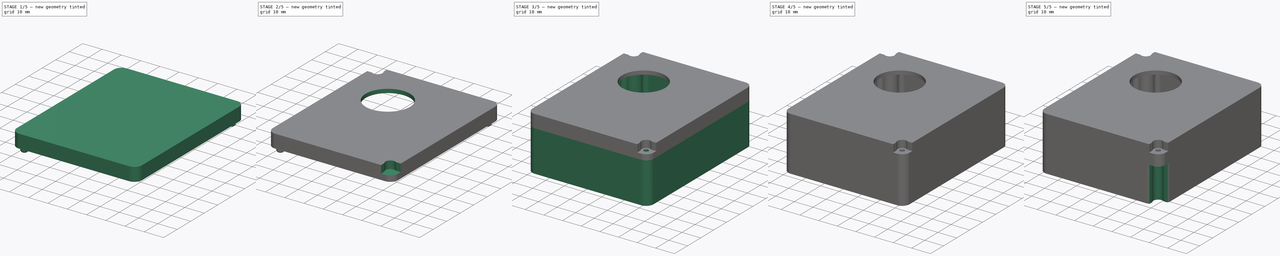
[diagram: build sequence overview — one tinted view per stage of 5, left to right]
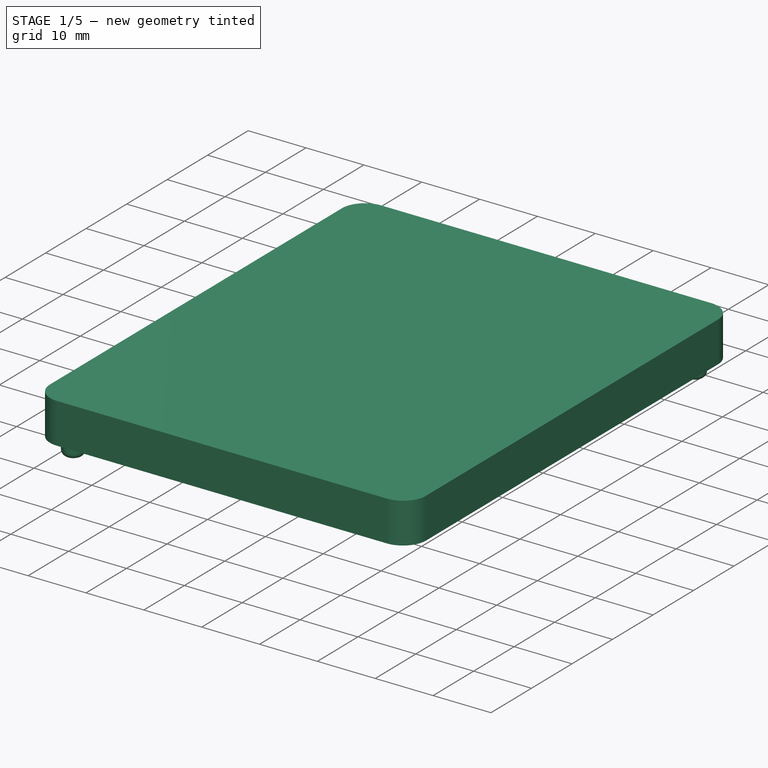
[diagram: stage 1 of 5 — iso view after this stage's code; geometry added in this stage tinted green]
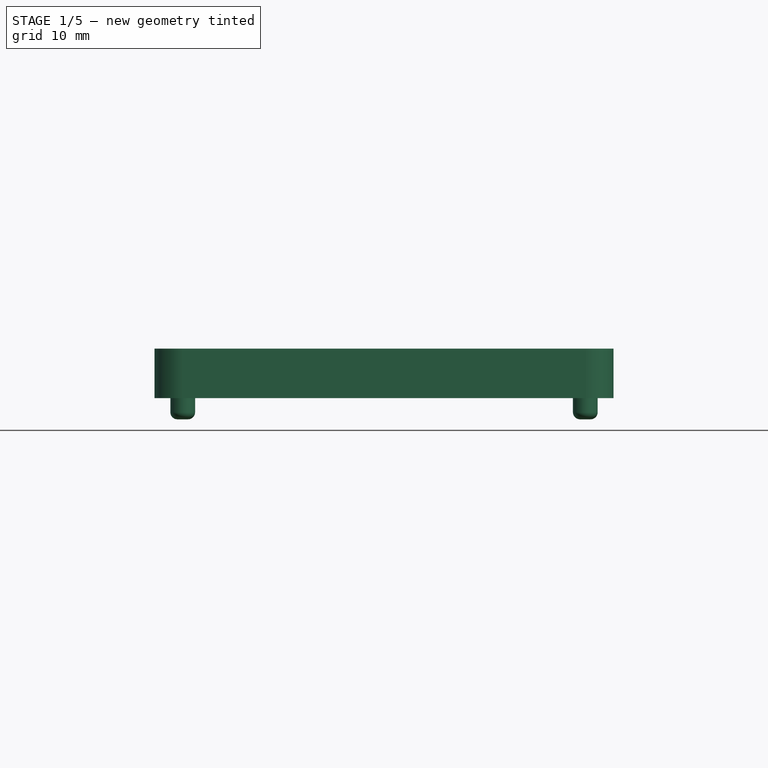
[diagram: stage 1 of 5 — front view after this stage's code; geometry added in this stage tinted green]
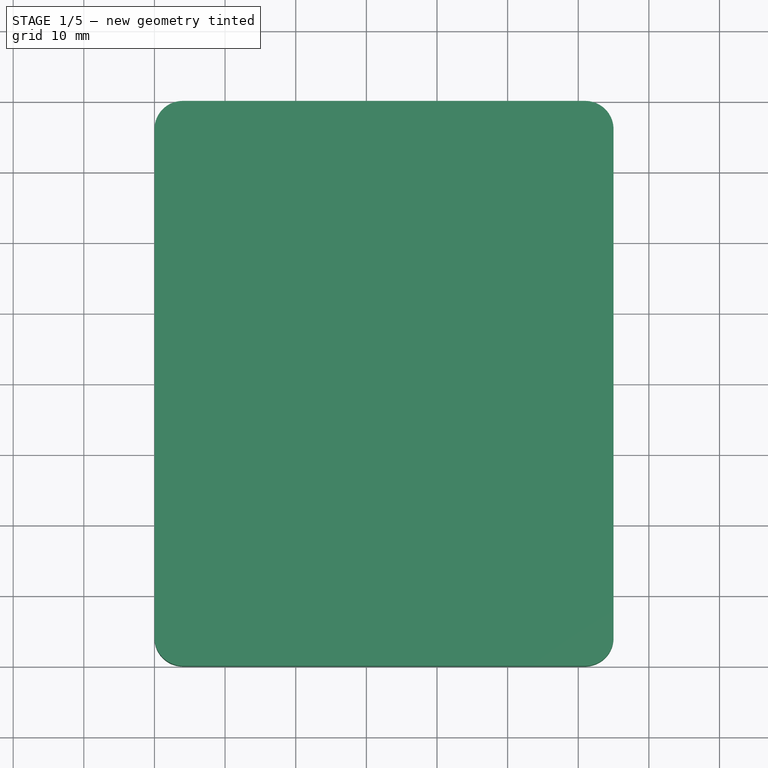
[diagram: stage 1 of 5 — top view after this stage's code; geometry added in this stage tinted green]
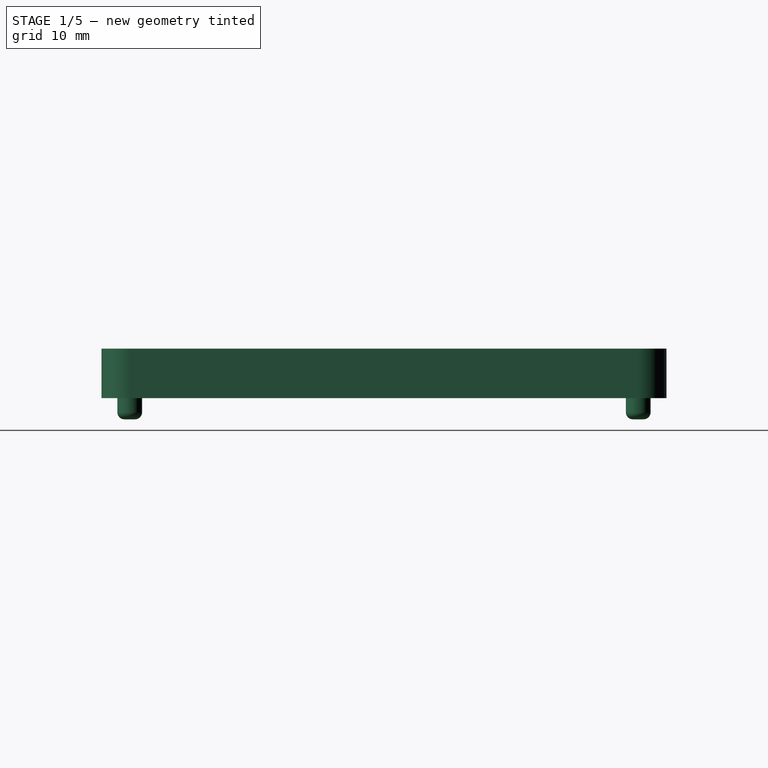
[diagram: stage 1 of 5 — right view after this stage's code; geometry added in this stage tinted green]
FCSTD DOCUMENT  (FreeCAD 1.0R39319 (Git))
Label: remote
License: All rights reserved
LicenseURL: https://en.wikipedia.org/wiki/All_rights_reserved
objects: Sketcher::SketchObject×14, PartDesign::ShapeBinder×14, PartDesign::Pocket×10, PartDesign::Plane×5, PartDesign::Pad×4, PartDesign::Body×3, PartDesign::Fillet×2
note: 98 computed .brp shape members not serialized (recipe doc carries the construction recipe); baked Part::Feature solids carry a one-line shape summary decoded from their .brp

FEATURE [PartDesign::Body] Body001  label="bottom_part"
  AllowCompound = false
  Group = -> [ShapeBinder,Pad,ShapeBinder001,Pocket,ShapeBinder002,Pocket001,ShapeBinder003,Pocket002,ShapeBinder004,Pocket003,ShapeBinder005,Pocket004,ShapeBinder006,Pad001,ShapeBinder007,Pocket005,Fillet]
  Origin = -> Origin001
  Tip = -> Fillet
FEATURE [PartDesign::ShapeBinder] ShapeBinder008
  Placement = pos=(0,0,22) rot=(0,0,1;0rad)
  Support = -> [Sketch008]
  TraceSupport = false
FEATURE [PartDesign::Pad] Pad002
  Direction = (0,0,1)
  Length = 7
  Length2 = 10
  Placement = pos=(0,0,22) rot=(0,0,1;0rad)
  Profile = -> ShapeBinder008
  Refine = true
  Suppressed = false
  Type = 0
FEATURE [Sketcher::SketchObject] Sketch009  label="locating_pins"
  ArcFitTolerance = 1e-06
  AttachmentSupport = -> [DatumPlane003]
  ExternalGeometry = -> [Sketch003]
  FullyConstrained = true
  MakeInternals = false
  MapMode = 5
  Placement = pos=(0,0,22) rot=(0,0,1;0rad)
  sketch-geometry (2):
    g0: Circle CenterX=61 CenterY=76 CenterZ=0 NormalX=0 NormalY=0 NormalZ=1 AngleXU=0 Radius=1.75
    g1: Circle CenterX=4 CenterY=4 CenterZ=0 NormalX=0 NormalY=0 NormalZ=1 AngleXU=0 Radius=1.75
  constraints (4):
    c: Coincident(g0,g-3)
    c: Coincident(g1,g-4)
    c: Diameter(g1) = 3.5
    c: Diameter(g0) = 3.5
FEATURE [PartDesign::ShapeBinder] ShapeBinder009
  Placement = pos=(0,0,22) rot=(0,0,1;0rad)
  Support = -> [Sketch009]
  TraceSupport = false
FEATURE [PartDesign::Pad] Pad003
  BaseFeature = -> Pad002
  Direction = (0,0,1)
  Length = 3
  Length2 = 10
  Placement = pos=(0,0,22) rot=(0,0,1;0rad)
  Profile = -> ShapeBinder009
  Refine = true
  Reversed = true
  Suppressed = false
  Type = 0
FEATURE [PartDesign::Fillet] Fillet001
  Base = -> Pad003 [Face13,Face14]
  BaseFeature = -> Pad003
  Placement = pos=(0,0,22) rot=(0,0,1;0rad)
  Radius = 1
  Refine = true
  SupportTransform = false
  Suppressed = false
  UseAllEdges = false
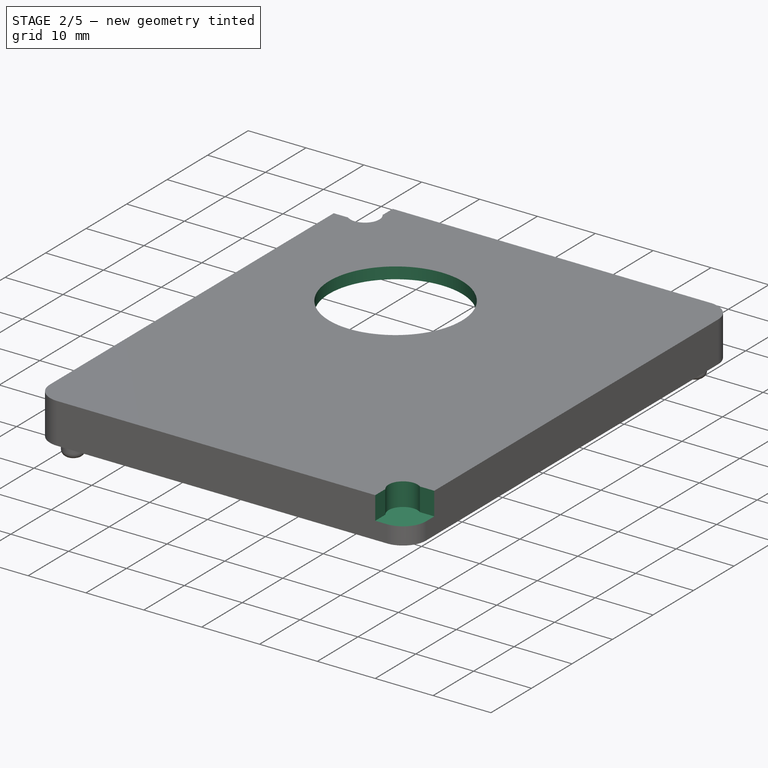
[diagram: stage 2 of 5 — iso view after this stage's code; geometry added in this stage tinted green]
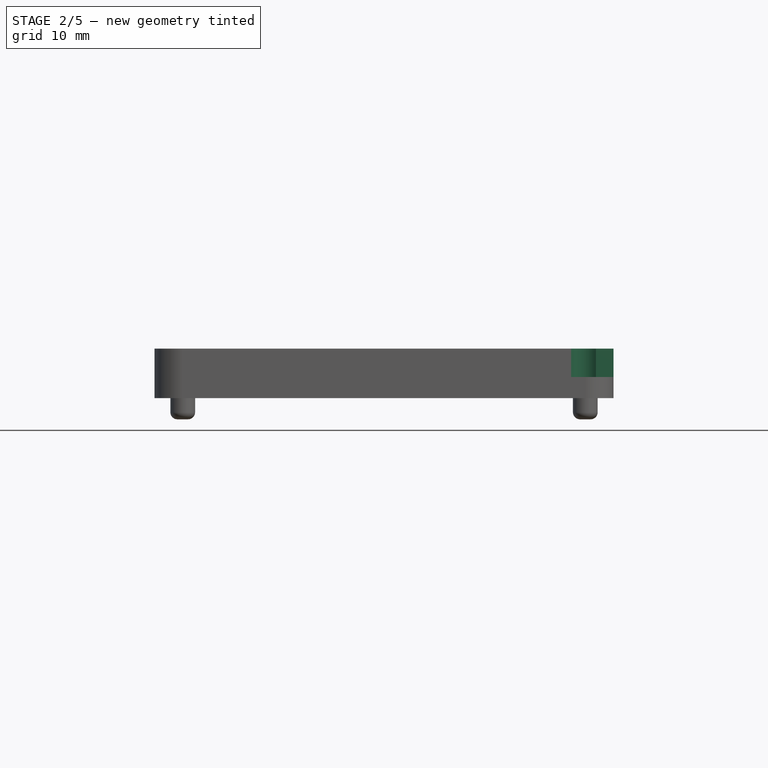
[diagram: stage 2 of 5 — front view after this stage's code; geometry added in this stage tinted green]
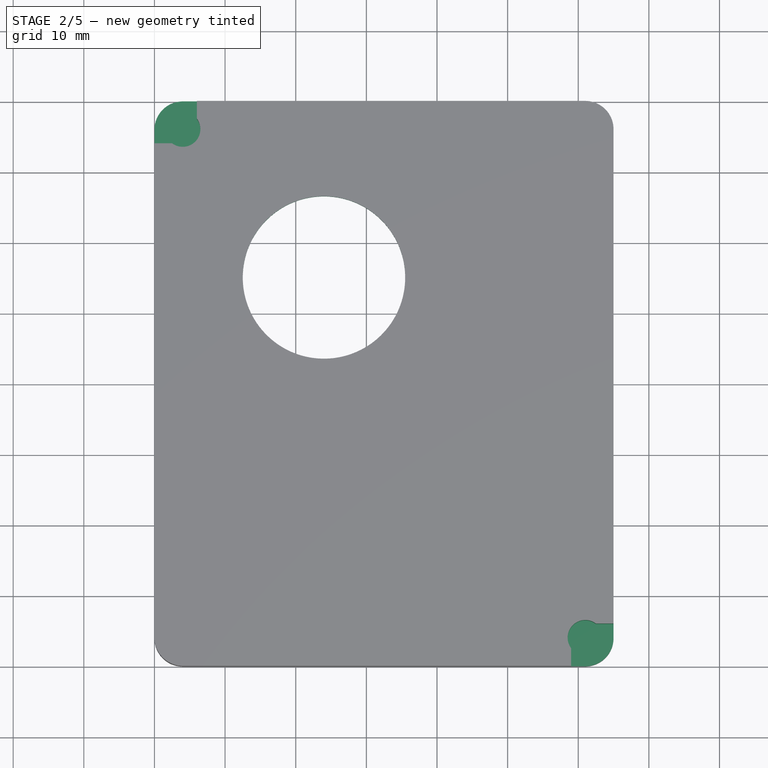
[diagram: stage 2 of 5 — top view after this stage's code; geometry added in this stage tinted green]
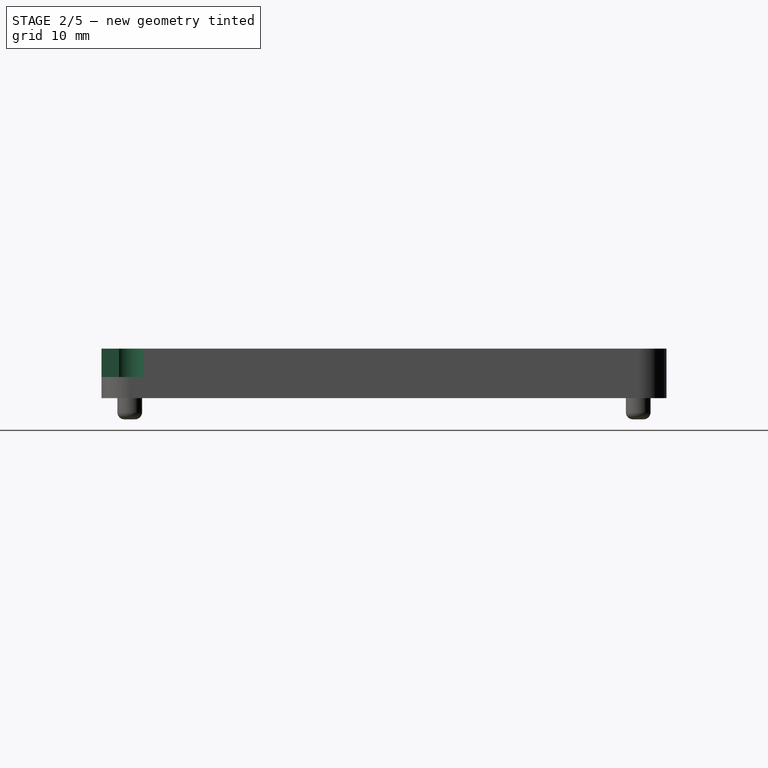
[diagram: stage 2 of 5 — right view after this stage's code; geometry added in this stage tinted green]
FEATURE [Sketcher::SketchObject] Sketch010  label="cover_recess"
  ArcFitTolerance = 1e-06
  AttachmentSupport = -> [DatumPlane003]
  ExternalGeometry = -> [Sketch]
  FullyConstrained = true
  MakeInternals = false
  MapMode = 5
  Placement = pos=(0,0,22) rot=(0,0,1;0rad)
  sketch-geometry (16):
    g0: LineSegment StartX=53.5 StartY=79 StartZ=0 EndX=11.5 EndY=79 EndZ=0
    g1: LineSegment StartX=1 StartY=69 StartZ=0 EndX=1 EndY=11 EndZ=0
    g2: LineSegment StartX=64 StartY=11 StartZ=0 EndX=64 EndY=69 EndZ=0
    g3: LineSegment StartX=64 StartY=69 StartZ=0 EndX=53.5 EndY=79 EndZ=0
    g4: LineSegment StartX=1 StartY=69 StartZ=0 EndX=11.5 EndY=79 EndZ=0
    g5: LineSegment StartX=53.5 StartY=1 StartZ=0 EndX=64 EndY=11 EndZ=0
    g6: LineSegment StartX=11.5 StartY=1 StartZ=0 EndX=1 EndY=11 EndZ=0
    g7: LineSegment StartX=11.5 StartY=1 StartZ=0 EndX=53.5 EndY=1 EndZ=0
    g8: GeomPoint [constr] X=64 Y=40 Z=0
    g9: GeomPoint [constr] X=32.5 Y=79 Z=0
    g10: GeomPoint [constr] X=32.5 Y=1 Z=0
    g11: GeomPoint [constr] X=1 Y=40 Z=0
    g12: LineSegment [constr] StartX=64 StartY=40 StartZ=0 EndX=1 EndY=40 EndZ=0
    g13: LineSegment [constr] StartX=32.5 StartY=79 StartZ=0 EndX=32.5 EndY=1 EndZ=0
    g14: GeomPoint [constr] X=32.5 Y=40 Z=0
    g15: GeomPoint [constr] X=32.5 Y=40 Z=0
  constraints (35):
    c: Horizontal(g0)
    c: Vertical(g1)
    c: Vertical(g2)
    c: PointOnObject(g6,g7)
    c: Coincident(g7,g5)
    c: Coincident(g2,g5)
    c: PointOnObject(g7,g6)
    c: Coincident(g1,g6)
    c: Coincident(g0,g3)
    c: Coincident(g2,g3)
    c: Coincident(g0,g4)
    c: Coincident(g1,g4)
    c: DistanceX(g0,g0) = 42
    c: Equal(g7,g0)
    c: Equal(g2,g1)
    c: DistanceY(g2,g2) = 58
    c: Symmetric(g2,g2,g8)
    c: Symmetric(g0,g0,g9)
    c: Symmetric(g7,g7,g10)
    c: Symmetric(g1,g1,g11)
    c: Coincident(g12,g8)
    c: Coincident(g12,g11)
    c: Horizontal(g12)
    c: Coincident(g13,g9)
    c: Coincident(g13,g10)
    c: Vertical(g13)
    c: Symmetric(g13,g13,g14)
    c: PointOnObject(g14,g12)
    c: Symmetric(g12,g12,g15)
    c: PointOnObject(g15,g13)
    c: Horizontal(g7)
    c: Distance(g-1,g7) = 1
    c: Distance(g2,g-3) = 1
    c: Distance(g-2,g1) = 1
    c: Distance(g-4,g0) = 1
FEATURE [PartDesign::ShapeBinder] ShapeBinder010
  Placement = pos=(0,0,22) rot=(0,0,1;0rad)
  Support = -> [Sketch010]
  TraceSupport = false
FEATURE [PartDesign::Pocket] Pocket006
  BaseFeature = -> Fillet001
  Direction = (0,0,-1)
  Length = 5
  Length2 = 5
  Placement = pos=(0,0,22) rot=(0,0,1;0rad)
  Profile = -> ShapeBinder010
  Refine = true
  Reversed = true
  Suppressed = false
  Type = 0
FEATURE [PartDesign::Plane] DatumPlane004
  AttachmentOffset = pos=(0,0,29) rot=(0,0,1;0rad)
  AttachmentSupport = -> [XY_Plane]
  Length = 109.442
  MapMode = 5
  Placement = pos=(0,0,29) rot=(0,0,1;0rad)
  ResizeMode = 0
  Width = 124.442
FEATURE [Sketcher::SketchObject] Sketch011  label="cover_flange_recess"
  ArcFitTolerance = 1e-06
  AttachmentSupport = -> [DatumPlane004]
  ExternalGeometry = -> [Sketch003,Sketch]
  FullyConstrained = true
  MakeInternals = false
  MapMode = 5
  Placement = pos=(0,0,29) rot=(0,0,1;0rad)
  expr: Constraints[13] = Sketch007.Constraints[13]
  expr: Constraints[14] = Sketch007.Constraints[14]
  expr: Constraints[16] = Sketch007.Constraints[16]
  expr: Constraints[1] = Sketch007.Constraints[1]
  expr: Constraints[26] = Sketch007.Constraints[26]
  expr: Constraints[27] = Sketch007.Constraints[27]
  sketch-geometry (10):
    g0: ArcOfCircle CenterX=61 CenterY=4 CenterZ=0 NormalX=0 NormalY=0 NormalZ=1 AngleXU=0 Radius=2.5 StartAngle=0.927295 EndAngle=3.78509
    g1: LineSegment StartX=65 StartY=0 StartZ=0 EndX=65 EndY=6 EndZ=0
    g2: LineSegment StartX=65 StartY=6 StartZ=0 EndX=62.5 EndY=6 EndZ=0
    g3: LineSegment StartX=59 StartY=2.5 StartZ=0 EndX=59 EndY=0 EndZ=0
    g4: LineSegment StartX=59 StartY=0 StartZ=0 EndX=65 EndY=0 EndZ=0
    g5: ArcOfCircle CenterX=4 CenterY=76 CenterZ=0 NormalX=0 NormalY=0 NormalZ=1 AngleXU=0 Radius=2.5 StartAngle=4.06889 EndAngle=6.92669
    g6: LineSegment StartX=6 StartY=77.5 StartZ=0 EndX=6 EndY=80 EndZ=0
    g7: LineSegment StartX=6 StartY=80 StartZ=0 EndX=0 EndY=80 EndZ=0
    g8: LineSegment StartX=0 StartY=80 StartZ=0 EndX=0 EndY=74 EndZ=0
    g9: LineSegment StartX=0 StartY=74 StartZ=0 EndX=2.5 EndY=74 EndZ=0
  constraints (30):
    c: Coincident(g0,g-3)
    c: Diameter(g0) = 5
    c: Coincident(g1,g2)
    c: Coincident(g3,g4)
    c: Coincident(g4,g1)
    c: Vertical(g1)
    c: Vertical(g3)
    c: Horizontal(g2)
    c: Horizontal(g4)
    c: PointOnObject(g1,g-1)
    c: PointOnObject(g1,g-4)
    c: Coincident(g0,g3)
    c: Coincident(g0,g2)
    c: DistanceY(g1,g1) = 6
    c: DistanceX(g4,g4) = 6
    c: Coincident(g5,g-6)
    c: Diameter(g5) = 5
    c: Coincident(g6,g7)
    c: Coincident(g7,g8)
    c: Coincident(g8,g9)
    c: Vertical(g6)
    c: Vertical(g8)
    c: Horizontal(g7)
    c: Horizontal(g9)
    c: PointOnObject(g7,g-2)
    c: PointOnObject(g-5,g7)
    c: DistanceX(g7,g7) = 6
    c: DistanceY(g8,g8) = 6
    c: Coincident(g9,g5)
    c: Coincident(g6,g5)
FEATURE [PartDesign::ShapeBinder] ShapeBinder011
  Placement = pos=(0,0,29) rot=(0,0,1;0rad)
  Support = -> [Sketch011]
  TraceSupport = false
FEATURE [PartDesign::Pocket] Pocket007
  BaseFeature = -> Pocket006
  Direction = (0,0,-1)
  Length = 4
  Length2 = 5
  Placement = pos=(0,0,22) rot=(0,0,1;0rad)
  Profile = -> ShapeBinder011
  Refine = true
  Suppressed = false
  Type = 0
FEATURE [Sketcher::SketchObject] Sketch012  label="joystick_window"
  ArcFitTolerance = 1e-06
  AttachmentSupport = -> [DatumPlane004]
  FullyConstrained = true
  MakeInternals = false
  MapMode = 5
  Placement = pos=(0,0,29) rot=(0,0,1;0rad)
  sketch-geometry (1):
    g0: Circle CenterX=24 CenterY=55 CenterZ=0 NormalX=0 NormalY=0 NormalZ=1 AngleXU=0 Radius=11.5
  constraints (3):
    c: Diameter(g0) = 23
    c: Distance(g0,g-2) = 24
    c: DistanceY(g-1,g0) = 55
FEATURE [PartDesign::ShapeBinder] ShapeBinder012
  Placement = pos=(0,0,29) rot=(0,0,1;0rad)
  Support = -> [Sketch012]
  TraceSupport = false
FEATURE [PartDesign::Pocket] Pocket008
  BaseFeature = -> Pocket007
  Direction = (0,0,-1)
  Length = 5
  Length2 = 5
  Placement = pos=(0,0,22) rot=(0,0,1;0rad)
  Profile = -> ShapeBinder012
  Refine = true
  Suppressed = false
  Type = 0
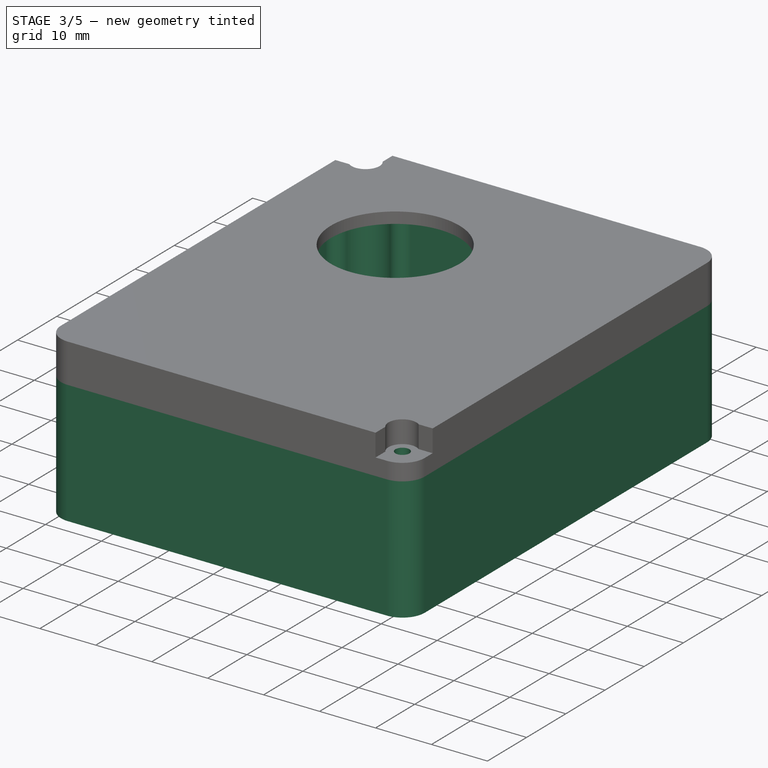
[diagram: stage 3 of 5 — iso view after this stage's code; geometry added in this stage tinted green]
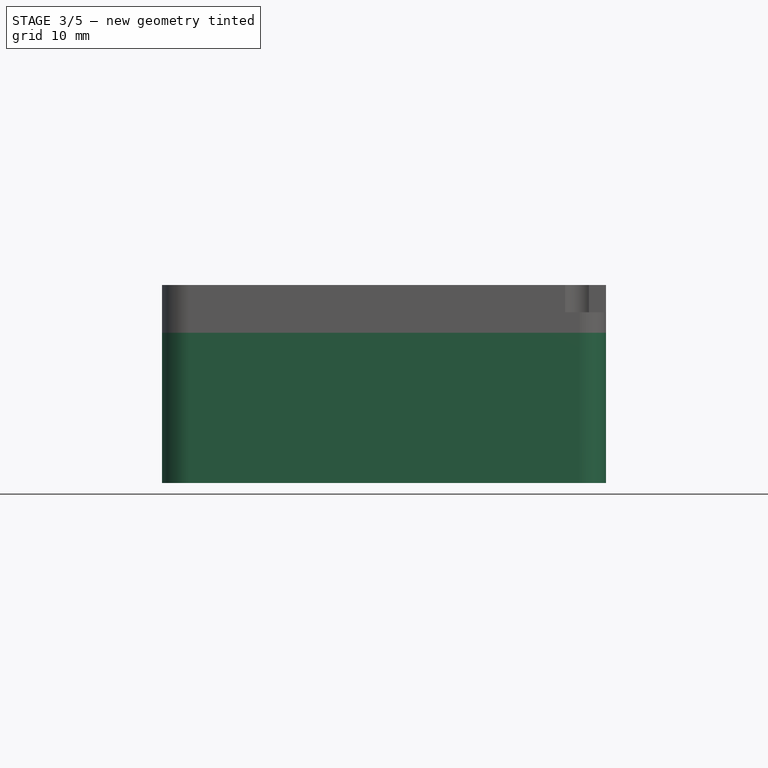
[diagram: stage 3 of 5 — front view after this stage's code; geometry added in this stage tinted green]
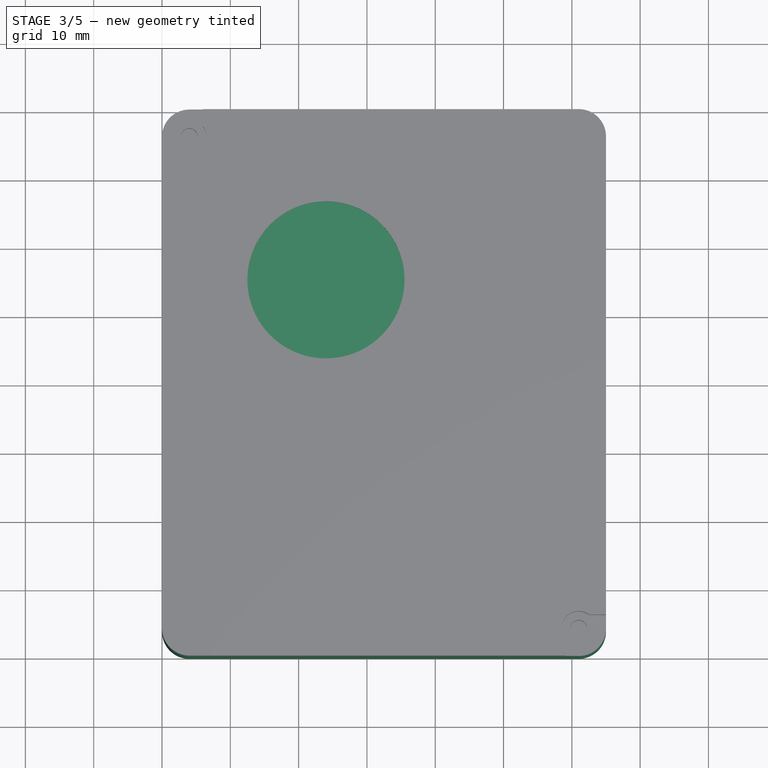
[diagram: stage 3 of 5 — top view after this stage's code; geometry added in this stage tinted green]
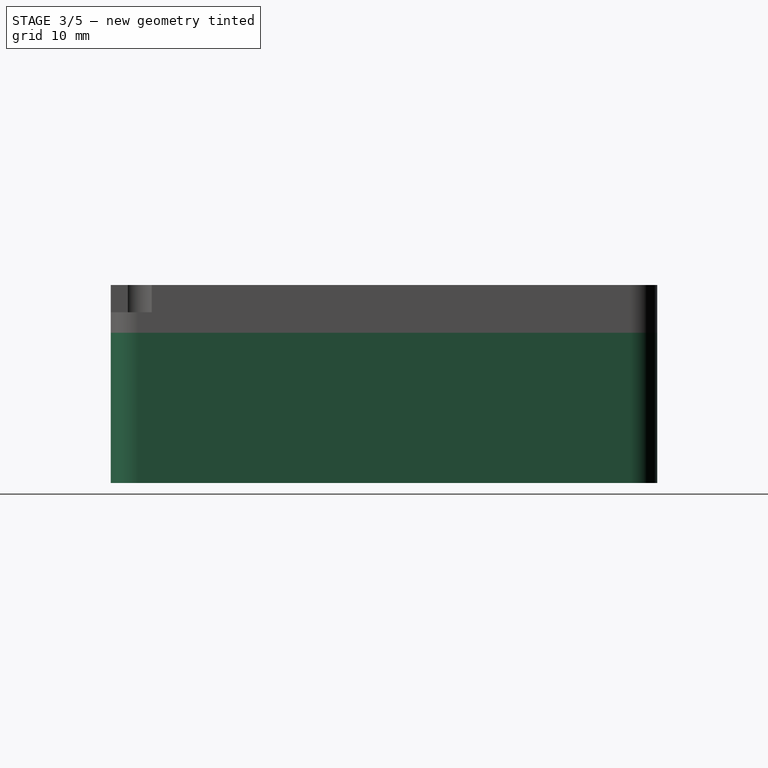
[diagram: stage 3 of 5 — right view after this stage's code; geometry added in this stage tinted green]
FEATURE [Sketcher::SketchObject] Sketch  label="bottom_outer_profile"
  ArcFitTolerance = 1e-06
  AttachmentSupport = -> [XY_Plane]
  FullyConstrained = true
  MakeInternals = false
  MapMode = 5
  sketch-geometry (12):
    g0: LineSegment StartX=4 StartY=0 StartZ=0 EndX=61 EndY=0 EndZ=0
    g1: LineSegment StartX=65 StartY=4 StartZ=0 EndX=65 EndY=76 EndZ=0
    g2: LineSegment StartX=61 StartY=80 StartZ=0 EndX=4 EndY=80 EndZ=0
    g3: LineSegment StartX=0 StartY=76 StartZ=0 EndX=0 EndY=4 EndZ=0
    g4: ArcOfCircle CenterX=4 CenterY=76 CenterZ=0 NormalX=0 NormalY=0 NormalZ=1 AngleXU=0 Radius=4 StartAngle=1.5708 EndAngle=3.14159
    g5: GeomPoint [constr] X=0 Y=80 Z=0
    g6: ArcOfCircle CenterX=61 CenterY=76 CenterZ=0 NormalX=0 NormalY=0 NormalZ=1 AngleXU=0 Radius=4 StartAngle=0 EndAngle=1.5708
    g7: GeomPoint [constr] X=65 Y=80 Z=0
    g8: ArcOfCircle CenterX=61 CenterY=4 CenterZ=0 NormalX=0 NormalY=0 NormalZ=1 AngleXU=0 Radius=4 StartAngle=4.71239 EndAngle=6.28319
    g9: GeomPoint [constr] X=65 Y=0 Z=0
    g10: ArcOfCircle CenterX=4 CenterY=4 CenterZ=0 NormalX=0 NormalY=0 NormalZ=1 AngleXU=0 Radius=4 StartAngle=3.14159 EndAngle=4.71239
    g11: GeomPoint [constr] X=0 Y=0 Z=0
  constraints (27):
    c: Horizontal(g0)
    c: Horizontal(g2)
    c: Vertical(g1)
    c: Vertical(g3)
    c: Coincident(g11,g-1)
    c: Distance(g5,g1) = 65
    c: Distance(g7,g0) = 80
    c: PointOnObject(g5,g3)
    c: PointOnObject(g5,g2)
    c: Tangent(g3,g4) = -1.5708
    c: Tangent(g2,g4) = -1.5708
    c: PointOnObject(g7,g2)
    c: PointOnObject(g7,g1)
    c: Tangent(g2,g6) = -1.5708
    c: Tangent(g1,g6) = -1.5708
    c: PointOnObject(g9,g1)
    c: PointOnObject(g9,g0)
    c: Tangent(g1,g8) = -1.5708
    c: Tangent(g0,g8) = -1.5708
    c: PointOnObject(g11,g0)
    c: PointOnObject(g11,g3)
    c: Tangent(g0,g10) = -1.5708
    c: Tangent(g3,g10) = -1.5708
    c: Radius(g10) = 4
    c: Radius(g8) = 4
    c: Radius(g6) = 4
    c: Radius(g4) = 4
FEATURE [PartDesign::ShapeBinder] ShapeBinder
  Support = -> [Sketch]
  TraceSupport = false
FEATURE [PartDesign::Pad] Pad
  Direction = (0,0,1)
  Length = 22
  Length2 = 10
  Profile = -> ShapeBinder
  Refine = true
  Suppressed = false
  Type = 0
FEATURE [PartDesign::Plane] DatumPlane
  AttachmentOffset = pos=(0,0,2.25) rot=(0,0,1;0rad)
  AttachmentSupport = -> [XY_Plane]
  Length = 109.442
  MapMode = 5
  Placement = pos=(0,0,2.25) rot=(0,0,1;0rad)
  ResizeMode = 0
  Width = 124.442
FEATURE [Sketcher::SketchObject] Sketch001  label="bottom_inner_profile"
  ArcFitTolerance = 1e-06
  AttachmentSupport = -> [DatumPlane]
  ExternalGeometry = -> [Sketch]
  FullyConstrained = true
  MakeInternals = false
  MapMode = 5
  Placement = pos=(0,0,2.25) rot=(0,0,1;0rad)
  sketch-geometry (20):
    g0: LineSegment StartX=1 StartY=70.0839 StartZ=0 EndX=1 EndY=7.4641 EndZ=0
    g1: LineSegment StartX=7.4641 StartY=1 StartZ=0 EndX=55.0839 EndY=1 EndZ=0
    g2: LineSegment StartX=64 StartY=9.91608 StartZ=0 EndX=64 EndY=72.5359 EndZ=0
    g3: LineSegment StartX=57.5359 StartY=79 StartZ=0 EndX=9.91608 EndY=79 EndZ=0
    g4: GeomPoint [constr] X=1 Y=1 Z=0
    g5: GeomPoint [constr] X=1 Y=79 Z=0
    g6: GeomPoint [constr] X=64 Y=79 Z=0
    g7: GeomPoint [constr] X=64 Y=1 Z=0
    g8: ArcOfCircle CenterX=3 CenterY=70.0839 CenterZ=0 NormalX=0 NormalY=0 NormalZ=1 AngleXU=0 Radius=2 StartAngle=1.40335 EndAngle=3.14159
    g9: ArcOfCircle CenterX=9.91608 CenterY=77 CenterZ=0 NormalX=0 NormalY=0 NormalZ=1 AngleXU=0 Radius=2 StartAngle=1.5708 EndAngle=3.30904
    g10: ArcOfCircle CenterX=4 CenterY=76 CenterZ=0 NormalX=0 NormalY=0 NormalZ=1 AngleXU=0 Radius=4 StartAngle=4.54494 EndAngle=6.45063
    g11: ArcOfCircle CenterX=57.5359 CenterY=78 CenterZ=0 NormalX=0 NormalY=0 NormalZ=1 AngleXU=0 Radius=1 StartAngle=5.75959 EndAngle=7.85398
    g12: ArcOfCircle CenterX=63 CenterY=72.5359 CenterZ=0 NormalX=0 NormalY=0 NormalZ=1 AngleXU=0 Radius=1 StartAngle=-6.2e-15 EndAngle=2.0944
    g13: ArcOfCircle CenterX=61 CenterY=76 CenterZ=0 NormalX=0 NormalY=0 NormalZ=1 AngleXU=0 Radius=3 StartAngle=2.61799 EndAngle=5.23599
    g14: ArcOfCircle CenterX=2 CenterY=7.4641 CenterZ=0 NormalX=0 NormalY=0 NormalZ=1 AngleXU=0 Radius=1 StartAngle=3.14159 EndAngle=5.23599
    g15: ArcOfCircle CenterX=7.4641 CenterY=2 CenterZ=0 NormalX=0 NormalY=0 NormalZ=1 AngleXU=0 Radius=1 StartAngle=2.61799 EndAngle=4.71239
    g16: ArcOfCircle CenterX=4 CenterY=4 CenterZ=0 NormalX=0 NormalY=0 NormalZ=1 AngleXU=0 Radius=3 StartAngle=5.75959 EndAngle=8.37758
    g17: ArcOfCircle CenterX=55.0839 CenterY=3 CenterZ=0 NormalX=0 NormalY=0 NormalZ=1 AngleXU=0 Radius=2 StartAngle=4.71239 EndAngle=6.45063
    g18: ArcOfCircle CenterX=62 CenterY=9.91608 CenterZ=0 NormalX=0 NormalY=0 NormalZ=1 AngleXU=0 Radius=2 StartAngle=4.54494 EndAngle=6.28319
    g19: ArcOfCircle CenterX=61 CenterY=4 CenterZ=0 NormalX=0 NormalY=0 NormalZ=1 AngleXU=0 Radius=4 StartAngle=1.40335 EndAngle=3.30904
  constraints (48):
    c: Vertical(g0)
    c: Vertical(g2)
    c: Horizontal(g1)
    c: Horizontal(g3)
    c: Distance(g-1,g1) = 1
    c: PointOnObject(g4,g1)
    c: PointOnObject(g4,g0)
    c: PointOnObject(g5,g0)
    c: PointOnObject(g5,g3)
    c: PointOnObject(g6,g3)
    c: PointOnObject(g6,g2)
    c: PointOnObject(g7,g1)
    c: PointOnObject(g7,g2)
    c: Distance(g-4,g2) = 1
    c: Distance(g-3,g3) = 1
    c: Distance(g-2,g0) = 1
    c: Tangent(g0,g8) = -1.5708
    c: Tangent(g3,g9) = -1.5708
    c: Radius(g10) = 4
    c: Radius(g9) = 2
    c: Radius(g8) = 2
    c: Tangent(g10,g9) = 1.5708
    c: Tangent(g11,g3) = -1.5708
    c: Tangent(g12,g2) = -1.5708
    c: Tangent(g13,g12) = 1.5708
    c: Tangent(g13,g11) = 1.5708
    c: Radius(g11) = 1
    c: Radius(g12) = 1
    c: Radius(g13) = 3
    c: Coincident(g13,g-6)
    c: Tangent(g14,g0) = -1.5708
    c: Tangent(g16,g14) = 1.5708
    c: Tangent(g16,g15) = 1.5708
    c: Tangent(g15,g1) = -1.5708
    c: Radius(g16) = 3
    c: Radius(g14) = 1
    c: Radius(g15) = 1
    c: Coincident(g16,g-7)
    c: Tangent(g19,g17) = 1.5708
    c: Tangent(g17,g1) = -1.5708
    c: Tangent(g19,g18) = 1.5708
    c: Tangent(g18,g2) = -1.5708
    c: Coincident(g-8,g19)
    c: Radius(g19) = 4
    c: Radius(g17) = 2
    c: Radius(g18) = 2
    c: Tangent(g8,g10) = 1.5708
    c: Coincident(g10,g-5)
FEATURE [PartDesign::ShapeBinder] ShapeBinder001
  Placement = pos=(0,0,2.25) rot=(0,0,1;0rad)
  Support = -> [Sketch001]
  TraceSupport = false
FEATURE [PartDesign::Pocket] Pocket
  BaseFeature = -> Pad
  Direction = (0,0,-1)
  Length = 5
  Length2 = 5
  Profile = -> ShapeBinder001
  Refine = true
  Reversed = true
  Suppressed = false
  Type = 1
FEATURE [Sketcher::SketchObject] Sketch002  label="pcb_mounting_holes"
  ArcFitTolerance = 1e-06
  AttachmentSupport = -> [XY_Plane]
  ExternalGeometry = -> [Sketch,Sketch001]
  FullyConstrained = true
  MakeInternals = false
  MapMode = 5
  sketch-geometry (15):
    g0: LineSegment [constr] StartX=14.5 StartY=66.774 StartZ=0 EndX=14.5 EndY=10.774 EndZ=0
    g1: LineSegment [constr] StartX=14.5 StartY=10.774 StartZ=0 EndX=50.5 EndY=10.774 EndZ=0
    g2: LineSegment [constr] StartX=50.5 StartY=10.774 StartZ=0 EndX=50.5 EndY=66.774 EndZ=0
    g3: LineSegment [constr] StartX=50.5 StartY=66.774 StartZ=0 EndX=14.5 EndY=66.774 EndZ=0
    g4: Circle CenterX=14.5 CenterY=66.774 CenterZ=0 NormalX=0 NormalY=0 NormalZ=1 AngleXU=0 Radius=1.25
    g5: Circle CenterX=50.5 CenterY=66.774 CenterZ=0 NormalX=0 NormalY=0 NormalZ=1 AngleXU=0 Radius=1.25
    g6: Circle CenterX=14.5 CenterY=10.774 CenterZ=0 NormalX=0 NormalY=0 NormalZ=1 AngleXU=0 Radius=1.25
    g7: Circle CenterX=50.5 CenterY=10.774 CenterZ=0 NormalX=0 NormalY=0 NormalZ=1 AngleXU=0 Radius=1.25
    g8: GeomPoint [constr] X=14.5 Y=38.774 Z=0
    g9: GeomPoint [constr] X=50.5 Y=38.774 Z=0
    g10: GeomPoint X=32.5 Y=80 Z=0
    g11: GeomPoint [constr] X=32.5 Y=66.774 Z=0
    g12: LineSegment [constr] StartX=32.5 StartY=66.774 StartZ=0 EndX=32.5 EndY=80 EndZ=0
    g13: GeomPoint [constr] X=1 Y=38.774 Z=0
    g14: LineSegment [constr] StartX=1 StartY=38.774 StartZ=0 EndX=14.5 EndY=38.774 EndZ=0
  constraints (29):
    c: Coincident(g0,g1)
    c: Coincident(g1,g2)
    c: Coincident(g2,g3)
    c: Coincident(g3,g0)
    c: Vertical(g0)
    c: Vertical(g2)
    c: Horizontal(g1)
    c: Horizontal(g3)
    c: Coincident(g4,g0)
    c: Coincident(g5,g2)
    c: Coincident(g6,g0)
    c: Coincident(g7,g1)
    c: Diameter(g4) = 2.5
    c: Diameter(g5) = 2.5
    c: Diameter(g6) = 2.5
    c: Diameter(g7) = 2.5
    c: Symmetric(g0,g0,g8)
    c: Symmetric(g2,g2,g9)
    c: DistanceY(g0,g0) = 56
    c: Distance(g3,g3) = 36
    c: Symmetric(g-3,g-3,g10)
    c: Symmetric(g3,g3,g11)
    c: Coincident(g12,g11)
    c: Coincident(g12,g10)
    c: Vertical(g12)
    c: Symmetric(g-4,g-4,g13)
    c: Coincident(g14,g13)
    c: Coincident(g14,g8)
    c: Horizontal(g14)
FEATURE [PartDesign::ShapeBinder] ShapeBinder002
  Support = -> [Sketch002]
  TraceSupport = false
FEATURE [PartDesign::Pocket] Pocket001
  BaseFeature = -> Pocket
  Direction = (0,0,-1)
  Length = 5
  Length2 = 5
  Midplane = true
  Profile = -> ShapeBinder002
  Refine = true
  Suppressed = false
  Type = 0
FEATURE [Sketcher::SketchObject] Sketch013  label="cover_screw_holes"
  ArcFitTolerance = 1e-06
  AttachmentSupport = -> [DatumPlane004]
  ExternalGeometry = -> [Sketch003]
  FullyConstrained = true
  MakeInternals = false
  MapMode = 5
  Placement = pos=(0,0,29) rot=(0,0,1;0rad)
  sketch-geometry (2):
    g0: Circle CenterX=61 CenterY=4 CenterZ=0 NormalX=0 NormalY=0 NormalZ=1 AngleXU=0 Radius=1.25
    g1: Circle CenterX=4 CenterY=76 CenterZ=0 NormalX=0 NormalY=0 NormalZ=1 AngleXU=0 Radius=1.25
  constraints (4):
    c: Coincident(g0,g-3)
    c: Equal(g-3,g0)
    c: Coincident(g1,g-4)
    c: Equal(g1,g-4)
FEATURE [PartDesign::Body] Body  label="arr2D"
  AllowCompound = false
  Group = -> [Sketch,Sketch001,DatumPlane,Sketch002,Sketch003,Sketch004,DatumPlane001,DatumPlane002,Sketch005,Sketch006,Sketch007,DatumPlane003,Sketch008,Sketch009,Sketch010,DatumPlane004,Sketch011,Sketch012,Sketch013]
  Origin = -> Origin
FEATURE [PartDesign::ShapeBinder] ShapeBinder013
  Placement = pos=(0,0,29) rot=(0,0,1;0rad)
  Support = -> [Sketch013]
  TraceSupport = false
FEATURE [PartDesign::Pocket] Pocket009
  BaseFeature = -> Pocket008
  Direction = (0,0,-1)
  Length = 5
  Length2 = 5
  Placement = pos=(0,0,22) rot=(0,0,1;0rad)
  Profile = -> ShapeBinder013
  Refine = true
  Suppressed = false
  Type = 1
FEATURE [PartDesign::Body] Body002  label="cover"
  AllowCompound = false
  Group = -> [ShapeBinder008,Pad002,ShapeBinder009,Pad003,Fillet001,ShapeBinder010,Pocket006,ShapeBinder011,Pocket007,ShapeBinder012,Pocket008,ShapeBinder013,Pocket009]
  Origin = -> Origin002
  Tip = -> Pocket009
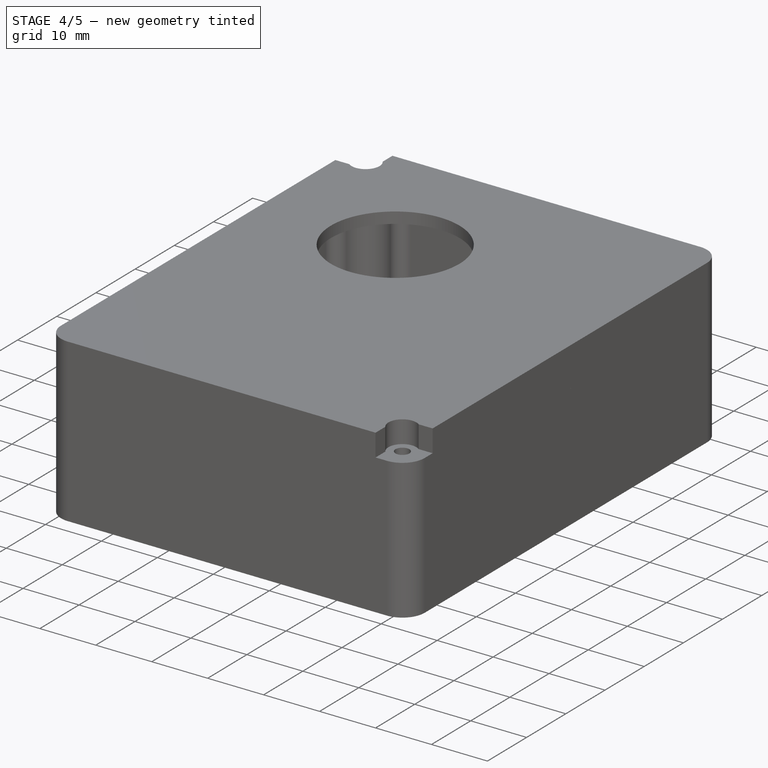
[diagram: stage 4 of 5 — iso view after this stage's code; geometry added in this stage tinted green]
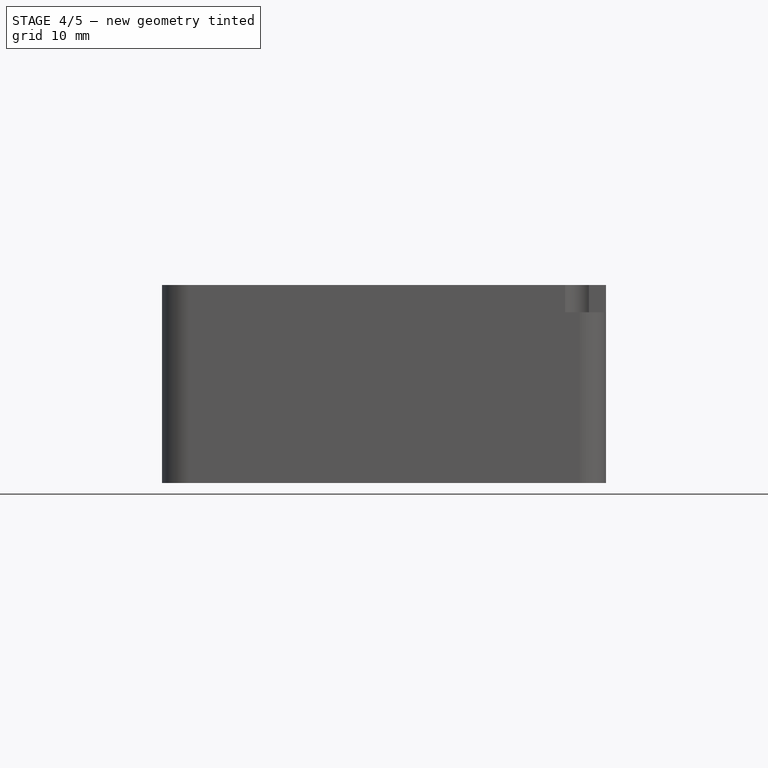
[diagram: stage 4 of 5 — front view after this stage's code; geometry added in this stage tinted green]
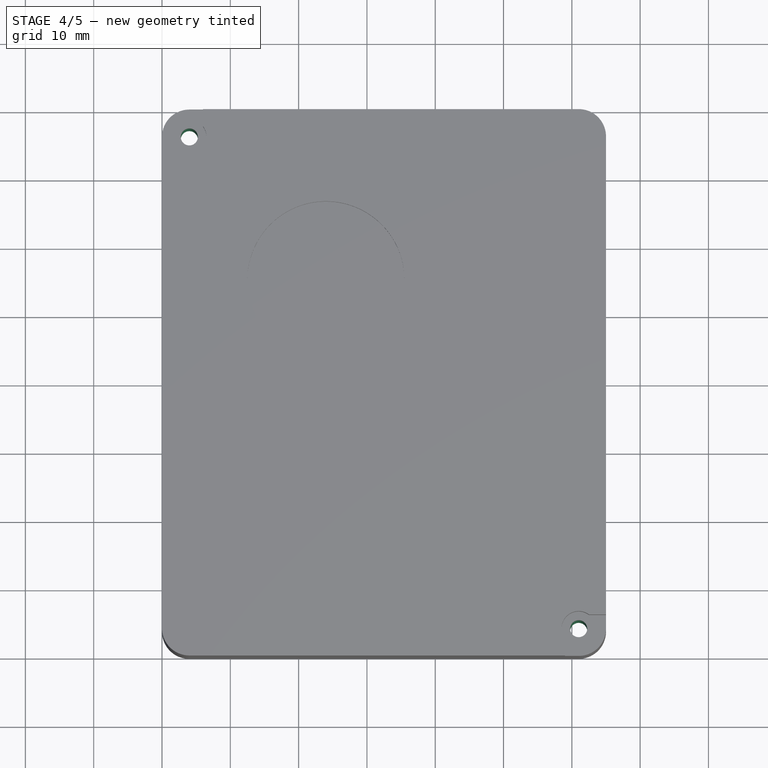
[diagram: stage 4 of 5 — top view after this stage's code; geometry added in this stage tinted green]
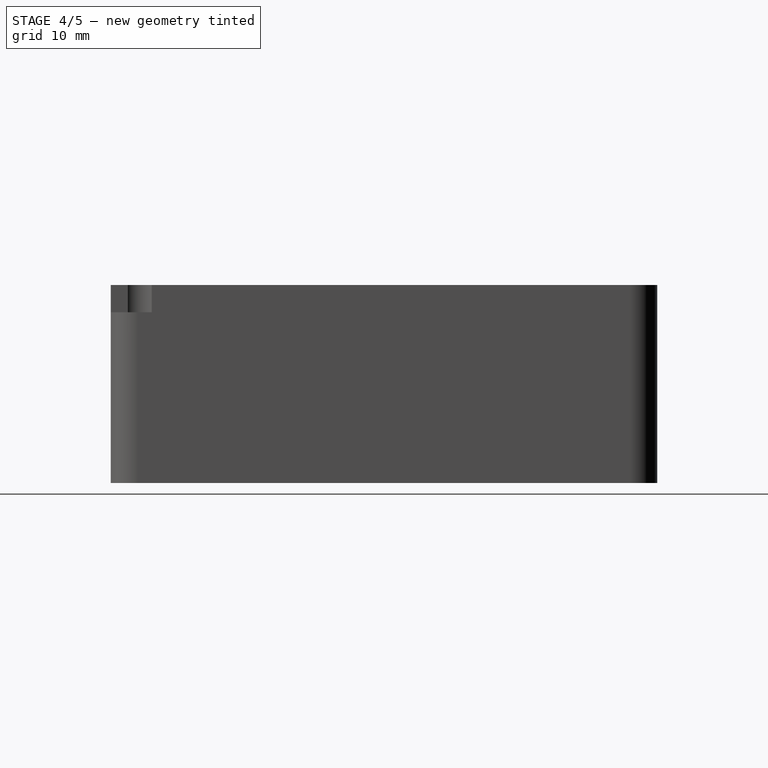
[diagram: stage 4 of 5 — right view after this stage's code; geometry added in this stage tinted green]
FEATURE [Sketcher::SketchObject] Sketch003  label="case_mouting_holes"
  ArcFitTolerance = 1e-06
  AttachmentSupport = -> [XY_Plane]
  ExternalGeometry = -> [Sketch001]
  FullyConstrained = true
  MakeInternals = false
  MapMode = 5
  sketch-geometry (4):
    g0: Circle CenterX=4 CenterY=76 CenterZ=0 NormalX=0 NormalY=0 NormalZ=1 AngleXU=0 Radius=1.25
    g1: Circle CenterX=61 CenterY=76 CenterZ=0 NormalX=0 NormalY=0 NormalZ=1 AngleXU=0 Radius=2
    g2: Circle CenterX=4 CenterY=4 CenterZ=0 NormalX=0 NormalY=0 NormalZ=1 AngleXU=0 Radius=2
    g3: Circle CenterX=61 CenterY=4 CenterZ=0 NormalX=0 NormalY=0 NormalZ=1 AngleXU=0 Radius=1.25
  constraints (8):
    c: Coincident(g0,g-3)
    c: Coincident(g1,g-4)
    c: Coincident(g2,g-6)
    c: Coincident(g3,g-5)
    c: Diameter(g0) = 2.5
    c: Diameter(g3) = 2.5
    c: Diameter(g1) = 4
    c: Diameter(g2) = 4
FEATURE [PartDesign::ShapeBinder] ShapeBinder003
  Support = -> [Sketch003]
  TraceSupport = false
FEATURE [PartDesign::Pocket] Pocket002
  BaseFeature = -> Pocket001
  Direction = (0,0,-1)
  Length = 5
  Length2 = 5
  Profile = -> ShapeBinder003
  Refine = true
  Reversed = true
  Suppressed = false
  Type = 1
FEATURE [Sketcher::SketchObject] Sketch004  label="nuts_footprint"
  ArcFitTolerance = 1e-06
  AttachmentSupport = -> [XY_Plane]
  ExternalGeometry = -> [Sketch003,Sketch002]
  FullyConstrained = true
  MakeInternals = false
  MapMode = 5
  sketch-geometry (60):
    g0: LineSegment StartX=1.95 StartY=74.8164 StartZ=0 EndX=1.95 EndY=77.1836 EndZ=0
    g1: LineSegment StartX=1.95 StartY=77.1836 StartZ=0 EndX=4 EndY=78.3671 EndZ=0
    g2: LineSegment StartX=4 StartY=78.3671 StartZ=0 EndX=6.05 EndY=77.1836 EndZ=0
    g3: LineSegment StartX=6.05 StartY=77.1836 StartZ=0 EndX=6.05 EndY=74.8164 EndZ=0
    g4: LineSegment StartX=6.05 StartY=74.8164 StartZ=0 EndX=4 EndY=73.6329 EndZ=0
    g5: LineSegment StartX=4 StartY=73.6329 StartZ=0 EndX=1.95 EndY=74.8164 EndZ=0
    g6: LineSegment [constr] StartX=4 StartY=78.3671 StartZ=0 EndX=4 EndY=73.6329 EndZ=0
    g7: LineSegment [constr] StartX=1.95 StartY=77.1836 StartZ=0 EndX=6.05 EndY=77.1836 EndZ=0
    g8: GeomPoint [constr] X=4 Y=77.1836 Z=0
    g9: GeomPoint [constr] X=4 Y=76 Z=0
    g10: LineSegment StartX=12.45 StartY=65.5904 StartZ=0 EndX=12.45 EndY=67.9576 EndZ=0
    g11: LineSegment StartX=12.45 StartY=67.9576 StartZ=0 EndX=14.5 EndY=69.1411 EndZ=0
    g12: LineSegment StartX=14.5 StartY=69.1411 StartZ=0 EndX=16.55 EndY=67.9576 EndZ=0
    g13: LineSegment StartX=16.55 StartY=67.9576 StartZ=0 EndX=16.55 EndY=65.5904 EndZ=0
    g14: LineSegment StartX=16.55 StartY=65.5904 StartZ=0 EndX=14.5 EndY=64.4069 EndZ=0
    g15: LineSegment StartX=14.5 StartY=64.4069 StartZ=0 EndX=12.45 EndY=65.5904 EndZ=0
    g16: LineSegment [constr] StartX=14.5 StartY=69.1411 StartZ=0 EndX=14.5 EndY=64.4069 EndZ=0
    g17: LineSegment [constr] StartX=12.45 StartY=67.9576 StartZ=0 EndX=16.55 EndY=67.9576 EndZ=0
    g18: GeomPoint [constr] X=14.5 Y=67.9576 Z=0
    g19: GeomPoint [constr] X=14.5 Y=66.774 Z=0
    g20: LineSegment StartX=48.45 StartY=65.5904 StartZ=0 EndX=48.45 EndY=67.9576 EndZ=0
    g21: LineSegment StartX=48.45 StartY=67.9576 StartZ=0 EndX=50.5 EndY=69.1411 EndZ=0
    g22: LineSegment StartX=50.5 StartY=69.1411 StartZ=0 EndX=52.55 EndY=67.9576 EndZ=0
    g23: LineSegment StartX=52.55 StartY=67.9576 StartZ=0 EndX=52.55 EndY=65.5904 EndZ=0
    g24: LineSegment StartX=52.55 StartY=65.5904 StartZ=0 EndX=50.5 EndY=64.4069 EndZ=0
    g25: LineSegment StartX=50.5 StartY=64.4069 StartZ=0 EndX=48.45 EndY=65.5904 EndZ=0
    g26: LineSegment [constr] StartX=50.5 StartY=69.1411 StartZ=0 EndX=50.5 EndY=64.4069 EndZ=0
    g27: LineSegment [constr] StartX=48.45 StartY=67.9576 StartZ=0 EndX=52.55 EndY=67.9576 EndZ=0
    g28: GeomPoint [constr] X=50.5 Y=67.9576 Z=0
    g29: GeomPoint [constr] X=50.5 Y=66.774 Z=0
    g30: LineSegment StartX=12.45 StartY=9.59044 StartZ=0 EndX=12.45 EndY=11.9576 EndZ=0
    g31: LineSegment StartX=12.45 StartY=11.9576 StartZ=0 EndX=14.5 EndY=13.1411 EndZ=0
    g32: LineSegment StartX=14.5 StartY=13.1411 StartZ=0 EndX=16.55 EndY=11.9576 EndZ=0
    g33: LineSegment StartX=16.55 StartY=11.9576 StartZ=0 EndX=16.55 EndY=9.59044 EndZ=0
    g34: LineSegment StartX=16.55 StartY=9.59044 StartZ=0 EndX=14.5 EndY=8.40687 EndZ=0
    g35: LineSegment StartX=14.5 StartY=8.40687 StartZ=0 EndX=12.45 EndY=9.59044 EndZ=0
    g36: LineSegment [constr] StartX=14.5 StartY=13.1411 StartZ=0 EndX=14.5 EndY=8.40687 EndZ=0
    g37: LineSegment [constr] StartX=12.45 StartY=11.9576 StartZ=0 EndX=16.55 EndY=11.9576 EndZ=0
    g38: GeomPoint [constr] X=14.5 Y=11.9576 Z=0
    g39: GeomPoint [constr] X=14.5 Y=10.774 Z=0
    g40: LineSegment StartX=48.45 StartY=9.59044 StartZ=0 EndX=48.45 EndY=11.9576 EndZ=0
    g41: LineSegment StartX=48.45 StartY=11.9576 StartZ=0 EndX=50.5 EndY=13.1411 EndZ=0
    g42: LineSegment StartX=50.5 StartY=13.1411 StartZ=0 EndX=52.55 EndY=11.9576 EndZ=0
    g43: LineSegment StartX=52.55 StartY=11.9576 StartZ=0 EndX=52.55 EndY=9.59044 EndZ=0
    g44: LineSegment StartX=52.55 StartY=9.59044 StartZ=0 EndX=50.5 EndY=8.40687 EndZ=0
    g45: LineSegment StartX=50.5 StartY=8.40687 StartZ=0 EndX=48.45 EndY=9.59044 EndZ=0
    g46: LineSegment [constr] StartX=50.5 StartY=13.1411 StartZ=0 EndX=50.5 EndY=8.40687 EndZ=0
    g47: LineSegment [constr] StartX=48.45 StartY=11.9576 StartZ=0 EndX=52.55 EndY=11.9576 EndZ=0
    g48: GeomPoint [constr] X=50.5 Y=11.9576 Z=0
    g49: GeomPoint [constr] X=50.5 Y=10.774 Z=0
    g50: LineSegment StartX=58.95 StartY=2.81643 StartZ=0 EndX=58.95 EndY=5.18357 EndZ=0
    g51: LineSegment StartX=58.95 StartY=5.18357 StartZ=0 EndX=61 EndY=6.36714 EndZ=0
    g52: LineSegment StartX=61 StartY=6.36714 StartZ=0 EndX=63.05 EndY=5.18357 EndZ=0
    g53: LineSegment StartX=63.05 StartY=5.18357 StartZ=0 EndX=63.05 EndY=2.81643 EndZ=0
    g54: LineSegment StartX=63.05 StartY=2.81643 StartZ=0 EndX=61 EndY=1.63286 EndZ=0
    g55: LineSegment StartX=61 StartY=1.63286 StartZ=0 EndX=58.95 EndY=2.81643 EndZ=0
    g56: LineSegment [constr] StartX=61 StartY=6.36714 StartZ=0 EndX=61 EndY=1.63286 EndZ=0
    g57: LineSegment [constr] StartX=58.95 StartY=5.18357 StartZ=0 EndX=63.05 EndY=5.18357 EndZ=0
    g58: GeomPoint [constr] X=61 Y=5.18357 Z=0
    g59: GeomPoint [constr] X=61 Y=4 Z=0
  constraints (138):
    c: Vertical(g0)
    c: Coincident(g0,g1)
    c: Coincident(g1,g2)
    c: Coincident(g2,g3)
    c: Coincident(g3,g4)
    c: Coincident(g4,g5)
    c: Coincident(g5,g0)
    c: Vertical(g3)
    c: Coincident(g6,g1)
    c: Coincident(g6,g4)
    c: Vertical(g6)
    c: Coincident(g7,g0)
    c: Coincident(g7,g2)
    c: Horizontal(g7)
    c: Symmetric(g7,g7,g8)
    c: PointOnObject(g8,g6)
    c: DistanceX(g7,g7) = 4.1
    c: Parallel(g1,g4)
    c: Distance(g4,g1) = 4.1
    c: Parallel(g2,g5)
    c: Symmetric(g6,g6,g9)
    c: Equal(g0,g5)
    c: Coincident(g9,g-3)
    c: Vertical(g10)
    c: Coincident(g10,g11)
    c: Coincident(g11,g12)
    c: Coincident(g12,g13)
    c: Coincident(g13,g14)
    c: Coincident(g14,g15)
    c: Coincident(g15,g10)
    c: Vertical(g13)
    c: Coincident(g16,g11)
    c: Coincident(g16,g14)
    c: Vertical(g16)
    c: Coincident(g17,g10)
    c: Coincident(g17,g12)
    c: Horizontal(g17)
    c: Symmetric(g17,g17,g18)
    c: PointOnObject(g18,g16)
    c: DistanceX(g17,g17) = 4.1
    c: Parallel(g11,g14)
    c: Distance(g14,g11) = 4.1
    c: Parallel(g12,g15)
    c: Symmetric(g16,g16,g19)
    c: Equal(g10,g15)
    c: Coincident(g19,g-4)
    c: Vertical(g20)
    c: Coincident(g20,g21)
    c: Coincident(g21,g22)
    c: Coincident(g22,g23)
    c: Coincident(g23,g24)
    c: Coincident(g24,g25)
    c: Coincident(g25,g20)
    c: Vertical(g23)
    c: Coincident(g26,g21)
    c: Coincident(g26,g24)
    c: Vertical(g26)
    c: Coincident(g27,g20)
    c: Coincident(g27,g22)
    c: Horizontal(g27)
    c: Symmetric(g27,g27,g28)
    c: PointOnObject(g28,g26)
    c: DistanceX(g27,g27) = 4.1
    c: Parallel(g21,g24)
    c: Distance(g24,g21) = 4.1
    c: Parallel(g22,g25)
    c: Symmetric(g26,g26,g29)
    c: Equal(g20,g25)
    c: Coincident(g29,g-5)
    c: Vertical(g30)
    c: Coincident(g30,g31)
    c: Coincident(g31,g32)
    c: Coincident(g32,g33)
    c: Coincident(g33,g34)
    c: Coincident(g34,g35)
    c: Coincident(g35,g30)
    c: Vertical(g33)
    c: Coincident(g36,g31)
    c: Coincident(g36,g34)
    c: Vertical(g36)
    c: Coincident(g37,g30)
    c: Coincident(g37,g32)
    c: Horizontal(g37)
    c: Symmetric(g37,g37,g38)
    c: PointOnObject(g38,g36)
    c: DistanceX(g37,g37) = 4.1
    c: Parallel(g31,g34)
    c: Distance(g34,g31) = 4.1
    c: Parallel(g32,g35)
    c: Symmetric(g36,g36,g39)
    c: Equal(g30,g35)
    c: Coincident(g39,g-7)
    c: Vertical(g40)
    c: Coincident(g40,g41)
    c: Coincident(g41,g42)
    c: Coincident(g42,g43)
    c: Coincident(g43,g44)
    c: Coincident(g44,g45)
    c: Coincident(g45,g40)
    c: Vertical(g43)
    c: Coincident(g46,g41)
    c: Coincident(g46,g44)
    c: Vertical(g46)
    c: Coincident(g47,g40)
    c: Coincident(g47,g42)
    c: Horizontal(g47)
    c: Symmetric(g47,g47,g48)
    c: PointOnObject(g48,g46)
    c: DistanceX(g47,g47) = 4.1
    c: Parallel(g41,g44)
    c: Distance(g44,g41) = 4.1
    c: Parallel(g42,g45)
    c: Symmetric(g46,g46,g49)
    c: Equal(g40,g45)
    c: Coincident(g49,g-6)
    c: Vertical(g50)
    c: Coincident(g50,g51)
    c: Coincident(g51,g52)
    c: Coincident(g52,g53)
    c: Coincident(g53,g54)
    c: Coincident(g54,g55)
    c: Coincident(g55,g50)
    c: Vertical(g53)
    c: Coincident(g56,g51)
    c: Coincident(g56,g54)
    c: Vertical(g56)
    c: Coincident(g57,g50)
    c: Coincident(g57,g52)
    c: Horizontal(g57)
    c: Symmetric(g57,g57,g58)
    c: PointOnObject(g58,g56)
    c: DistanceX(g57,g57) = 4.1
    c: Parallel(g51,g54)
    c: Distance(g54,g51) = 4.1
    c: Parallel(g52,g55)
    c: Symmetric(g56,g56,g59)
    c: Equal(g50,g55)
    c: Coincident(g-8,g59)
FEATURE [PartDesign::ShapeBinder] ShapeBinder004
  Support = -> [Sketch004]
  TraceSupport = false
FEATURE [PartDesign::Plane] DatumPlane001
  AttachmentOffset = pos=(0,0,12.25) rot=(0,0,1;0rad)
  AttachmentSupport = -> [XY_Plane]
  Length = 109.442
  MapMode = 5
  Placement = pos=(0,0,12.25) rot=(0,0,1;0rad)
  ResizeMode = 0
  Width = 124.442
FEATURE [PartDesign::Plane] DatumPlane002
  AttachmentSupport = -> [YZ_Plane]
  Length = 120.06
  MapMode = 5
  Placement = pos=(0,0,0) rot=(0.57735,0.57735,0.57735;2.0944rad)
  ResizeMode = 0
  Width = 69.0599
FEATURE [Sketcher::SketchObject] Sketch005  label="switch_mouting_hole"
  ArcFitTolerance = 1e-06
  AttachmentSupport = -> [YZ_Plane]
  ExternalGeometry = -> [DatumPlane001,Sketch001]
  FullyConstrained = true
  MakeInternals = false
  MapMode = 5
  Placement = pos=(0,0,0) rot=(0.57735,0.57735,0.57735;2.0944rad)
  sketch-geometry (1):
    g0: Circle CenterX=56 CenterY=6.25 CenterZ=0 NormalX=0 NormalY=0 NormalZ=1 AngleXU=0 Radius=3.125
  constraints (3):
    c: Diameter(g0) = 6.25
    c: Distance(g0,g-2) = 56
    c: Distance(g0,g-4) = 4
FEATURE [PartDesign::ShapeBinder] ShapeBinder005
  Placement = pos=(0,0,0) rot=(0.57735,0.57735,0.57735;2.0944rad)
  Support = -> [Sketch005]
  TraceSupport = false
FEATURE [Sketcher::SketchObject] Sketch006  label="switch_slot"
  ArcFitTolerance = 1e-06
  AttachmentSupport = -> [XY_Plane]
  ExternalGeometry = -> [Sketch005]
  FullyConstrained = true
  MakeInternals = false
  MapMode = 5
  sketch-geometry (15):
    g0: GeomPoint X=0 Y=56 Z=0
    g1: LineSegment [constr] StartX=0 StartY=56 StartZ=0 EndX=14.4 EndY=56 EndZ=0
    g2: LineSegment [constr] StartX=0 StartY=49.4 StartZ=0 EndX=14.4 EndY=49.4 EndZ=0
    g3: LineSegment [constr] StartX=14.4 StartY=49.4 StartZ=0 EndX=14.4 EndY=62.6 EndZ=0
    g4: LineSegment [constr] StartX=14.4 StartY=62.6 StartZ=0 EndX=0 EndY=62.6 EndZ=0
    g5: LineSegment [constr] StartX=0 StartY=62.6 StartZ=0 EndX=0 EndY=49.4 EndZ=0
    g6: GeomPoint [constr] X=14.4 Y=56 Z=0
    g7: LineSegment StartX=0 StartY=62.6 StartZ=0 EndX=10 EndY=62.6 EndZ=0
    g8: LineSegment StartX=10 StartY=62.6 StartZ=0 EndX=10 EndY=66.6 EndZ=0
    g9: LineSegment StartX=10 StartY=66.6 StartZ=0 EndX=0 EndY=66.6 EndZ=0
    g10: LineSegment StartX=0 StartY=66.6 StartZ=0 EndX=0 EndY=62.6 EndZ=0
    g11: LineSegment StartX=0 StartY=49.4 StartZ=0 EndX=0 EndY=45.4 EndZ=0
    g12: LineSegment StartX=0 StartY=45.4 StartZ=0 EndX=10 EndY=45.4 EndZ=0
    g13: LineSegment StartX=10 StartY=45.4 StartZ=0 EndX=10 EndY=49.4 EndZ=0
    g14: LineSegment StartX=10 StartY=49.4 StartZ=0 EndX=0 EndY=49.4 EndZ=0
  constraints (40):
    c: Symmetric(g-3,g-3,g0)
    c: Coincident(g1,g0)
    c: Horizontal(g1)
    c: Coincident(g2,g3)
    c: Coincident(g3,g4)
    c: Coincident(g4,g5)
    c: Coincident(g5,g2)
    c: Horizontal(g2)
    c: Horizontal(g4)
    c: Vertical(g3)
    c: Vertical(g5)
    c: PointOnObject(g2,g-2)
    c: Symmetric(g3,g3,g6)
    c: PointOnObject(g6,g1)
    c: DistanceY(g3,g3) = 13.2
    c: PointOnObject(g1,g3)
    c: DistanceX(g1,g1) = 14.4
    c: Coincident(g7,g8)
    c: Coincident(g8,g9)
    c: Coincident(g9,g10)
    c: Coincident(g10,g7)
    c: Horizontal(g7)
    c: Horizontal(g9)
    c: Vertical(g8)
    c: Vertical(g10)
    c: Coincident(g7,g4)
    c: Coincident(g11,g12)
    c: Coincident(g12,g13)
    c: Coincident(g13,g14)
    c: Coincident(g14,g11)
    c: Vertical(g11)
    c: Vertical(g13)
    c: Horizontal(g12)
    c: Horizontal(g14)
    c: PointOnObject(g11,g2)
    c: PointOnObject(g12,g8)
    c: Distance(g14,g12) = 4
    c: Distance(g7,g9) = 4
    c: Distance(g10,g8) = 10
    c: PointOnObject(g11,g-2)
FEATURE [PartDesign::ShapeBinder] ShapeBinder006
  Support = -> [Sketch006]
  TraceSupport = false
FEATURE [Sketcher::SketchObject] Sketch007  label="case_flange_recess"
  ArcFitTolerance = 1e-06
  AttachmentSupport = -> [XY_Plane]
  ExternalGeometry = -> [Sketch003,Sketch]
  FullyConstrained = true
  MakeInternals = false
  MapMode = 5
  sketch-geometry (10):
    g0: ArcOfCircle CenterX=61 CenterY=4 CenterZ=0 NormalX=0 NormalY=0 NormalZ=1 AngleXU=0 Radius=2.5 StartAngle=0.927295 EndAngle=3.78509
    g1: LineSegment StartX=65 StartY=0 StartZ=0 EndX=65 EndY=6 EndZ=0
    g2: LineSegment StartX=65 StartY=6 StartZ=0 EndX=62.5 EndY=6 EndZ=0
    g3: LineSegment StartX=59 StartY=2.5 StartZ=0 EndX=59 EndY=0 EndZ=0
    g4: LineSegment StartX=59 StartY=0 StartZ=0 EndX=65 EndY=0 EndZ=0
    g5: ArcOfCircle CenterX=4 CenterY=76 CenterZ=0 NormalX=0 NormalY=0 NormalZ=1 AngleXU=0 Radius=2.5 StartAngle=4.06889 EndAngle=6.92669
    g6: LineSegment StartX=6 StartY=77.5 StartZ=0 EndX=6 EndY=80 EndZ=0
    g7: LineSegment StartX=6 StartY=80 StartZ=0 EndX=0 EndY=80 EndZ=0
    g8: LineSegment StartX=0 StartY=80 StartZ=0 EndX=0 EndY=74 EndZ=0
    g9: LineSegment StartX=0 StartY=74 StartZ=0 EndX=2.5 EndY=74 EndZ=0
  constraints (30):
    c: Coincident(g0,g-3)
    c: Diameter(g0) = 5
    c: Coincident(g1,g2)
    c: Coincident(g3,g4)
    c: Coincident(g4,g1)
    c: Vertical(g1)
    c: Vertical(g3)
    c: Horizontal(g2)
    c: Horizontal(g4)
    c: PointOnObject(g1,g-1)
    c: PointOnObject(g1,g-4)
    c: Coincident(g0,g3)
    c: Coincident(g0,g2)
    c: DistanceY(g1,g1) = 6
    c: DistanceX(g4,g4) = 6
    c: Coincident(g5,g-6)
    c: Diameter(g5) = 5
    c: Coincident(g6,g7)
    c: Coincident(g7,g8)
    c: Coincident(g8,g9)
    c: Vertical(g6)
    c: Vertical(g8)
    c: Horizontal(g7)
    c: Horizontal(g9)
    c: PointOnObject(g7,g-2)
    c: PointOnObject(g-5,g7)
    c: DistanceX(g7,g7) = 6
    c: DistanceY(g8,g8) = 6
    c: Coincident(g9,g5)
    c: Coincident(g6,g5)
FEATURE [PartDesign::ShapeBinder] ShapeBinder007
  Support = -> [Sketch007]
  TraceSupport = false
FEATURE [PartDesign::Pocket] Pocket003
  BaseFeature = -> Pocket002
  Direction = (0,0,-1)
  Length = 1.25
  Length2 = 5
  Profile = -> ShapeBinder004
  Refine = true
  Reversed = true
  Suppressed = false
  Type = 0
FEATURE [PartDesign::Pocket] Pocket004
  BaseFeature = -> Pocket003
  Direction = (-1,0,0)
  Length = 5
  Length2 = 5
  Profile = -> ShapeBinder005
  Refine = true
  Reversed = true
  Suppressed = false
  Type = 0
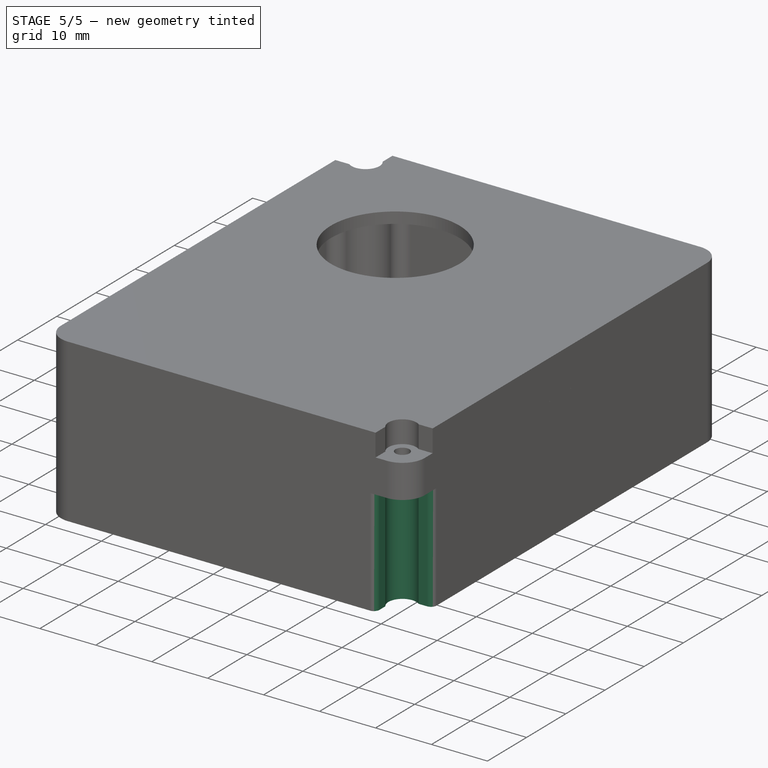
[diagram: stage 5 of 5 — iso view after this stage's code; geometry added in this stage tinted green]
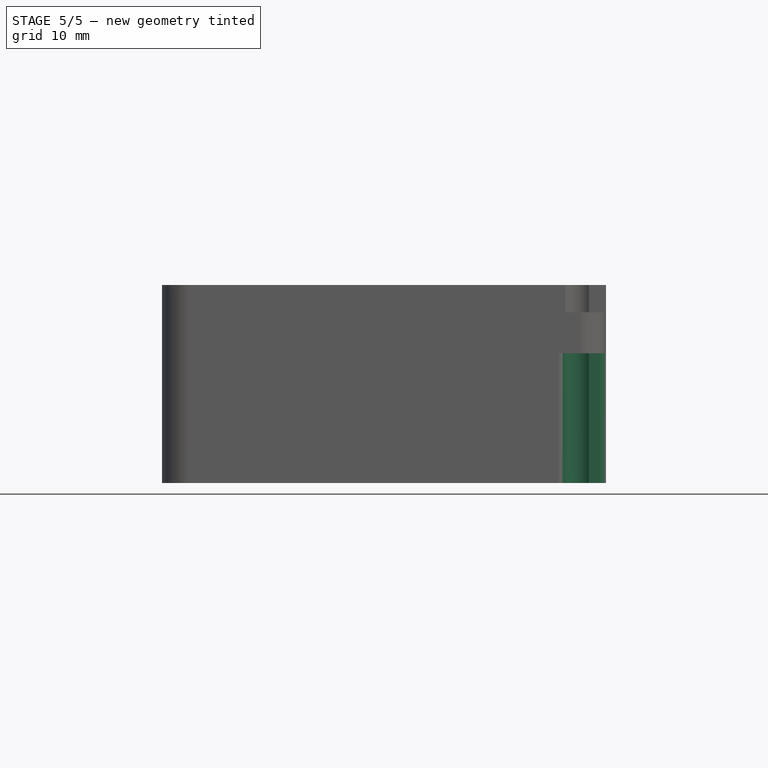
[diagram: stage 5 of 5 — front view after this stage's code; geometry added in this stage tinted green]
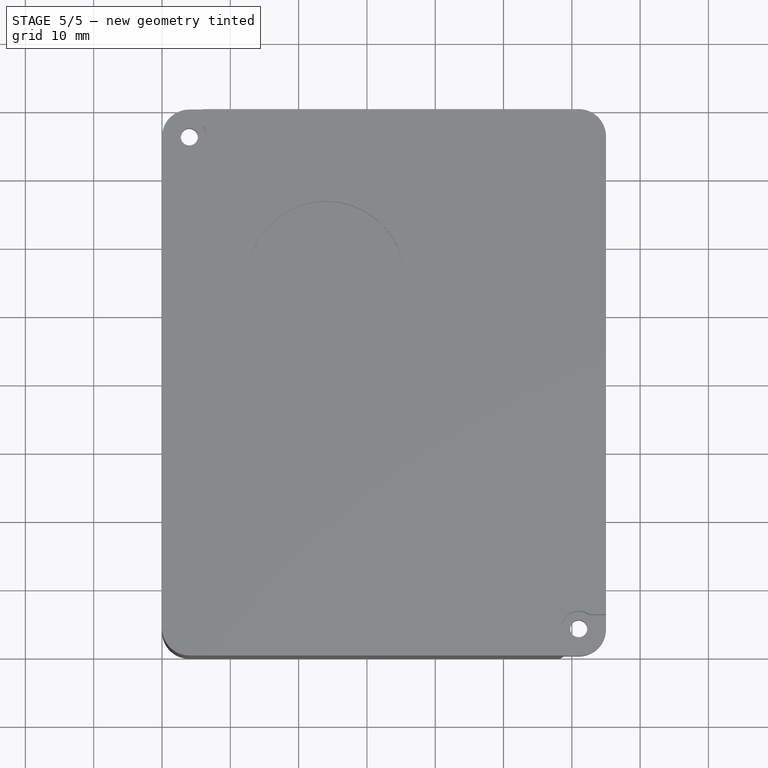
[diagram: stage 5 of 5 — top view after this stage's code; geometry added in this stage tinted green]
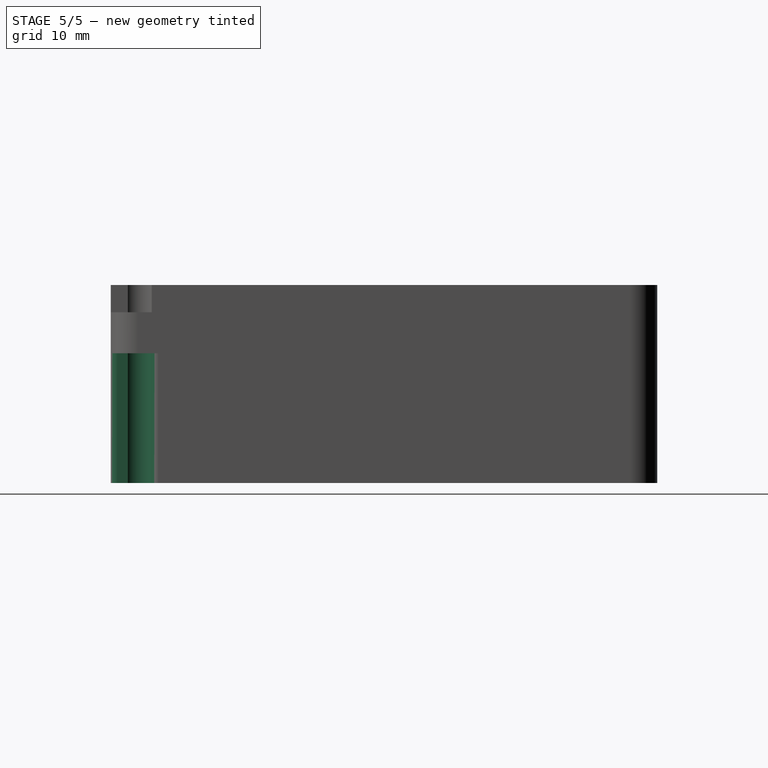
[diagram: stage 5 of 5 — right view after this stage's code; geometry added in this stage tinted green]
FEATURE [PartDesign::Pad] Pad001
  BaseFeature = -> Pocket004
  Direction = (0,0,1)
  Length = 6
  Length2 = 10
  Profile = -> ShapeBinder006
  Refine = true
  Suppressed = false
  Type = 0
FEATURE [PartDesign::Pocket] Pocket005
  BaseFeature = -> Pad001
  Direction = (0,0,-1)
  Length = 19
  Length2 = 5
  Profile = -> ShapeBinder007
  Refine = true
  Reversed = true
  Suppressed = false
  Type = 0
FEATURE [PartDesign::Plane] DatumPlane003
  AttachmentOffset = pos=(0,0,22) rot=(0,0,1;0rad)
  AttachmentSupport = -> [XY_Plane]
  Length = 109.442
  MapMode = 5
  Placement = pos=(0,0,22) rot=(0,0,1;0rad)
  ResizeMode = 0
  Width = 124.442
FEATURE [Sketcher::SketchObject] Sketch008  label="cover_outer_profile"
  ArcFitTolerance = 1e-06
  AttachmentSupport = -> [DatumPlane003]
  FullyConstrained = true
  MakeInternals = false
  MapMode = 5
  Placement = pos=(0,0,22) rot=(0,0,1;0rad)
  expr: Constraints[23] = Sketch.Constraints[23]
  expr: Constraints[24] = Sketch.Constraints[24]
  expr: Constraints[25] = Sketch.Constraints[25]
  expr: Constraints[26] = Sketch.Constraints[26]
  expr: Constraints[5] = Sketch.Constraints[5]
  expr: Constraints[6] = Sketch.Constraints[6]
  sketch-geometry (12):
    g0: LineSegment StartX=4 StartY=0 StartZ=0 EndX=61 EndY=0 EndZ=0
    g1: LineSegment StartX=65 StartY=4 StartZ=0 EndX=65 EndY=76 EndZ=0
    g2: LineSegment StartX=61 StartY=80 StartZ=0 EndX=4 EndY=80 EndZ=0
    g3: LineSegment StartX=0 StartY=76 StartZ=0 EndX=0 EndY=4 EndZ=0
    g4: ArcOfCircle CenterX=4 CenterY=76 CenterZ=0 NormalX=0 NormalY=0 NormalZ=1 AngleXU=0 Radius=4 StartAngle=1.5708 EndAngle=3.14159
    g5: GeomPoint [constr] X=0 Y=80 Z=0
    g6: ArcOfCircle CenterX=61 CenterY=76 CenterZ=0 NormalX=0 NormalY=0 NormalZ=1 AngleXU=0 Radius=4 StartAngle=0 EndAngle=1.5708
    g7: GeomPoint [constr] X=65 Y=80 Z=0
    g8: ArcOfCircle CenterX=61 CenterY=4 CenterZ=0 NormalX=0 NormalY=0 NormalZ=1 AngleXU=0 Radius=4 StartAngle=4.71239 EndAngle=6.28319
    g9: GeomPoint [constr] X=65 Y=0 Z=0
    g10: ArcOfCircle CenterX=4 CenterY=4 CenterZ=0 NormalX=0 NormalY=0 NormalZ=1 AngleXU=0 Radius=4 StartAngle=3.14159 EndAngle=4.71239
    g11: GeomPoint [constr] X=0 Y=0 Z=0
  constraints (27):
    c: Horizontal(g0)
    c: Horizontal(g2)
    c: Vertical(g1)
    c: Vertical(g3)
    c: Coincident(g11,g-1)
    c: Distance(g5,g1) = 65
    c: Distance(g7,g0) = 80
    c: PointOnObject(g5,g3)
    c: PointOnObject(g5,g2)
    c: Tangent(g3,g4) = -1.5708
    c: Tangent(g2,g4) = -1.5708
    c: PointOnObject(g7,g2)
    c: PointOnObject(g7,g1)
    c: Tangent(g2,g6) = -1.5708
    c: Tangent(g1,g6) = -1.5708
    c: PointOnObject(g9,g1)
    c: PointOnObject(g9,g0)
    c: Tangent(g1,g8) = -1.5708
    c: Tangent(g0,g8) = -1.5708
    c: PointOnObject(g11,g0)
    c: PointOnObject(g11,g3)
    c: Tangent(g0,g10) = -1.5708
    c: Tangent(g3,g10) = -1.5708
    c: Radius(g10) = 4
    c: Radius(g8) = 4
    c: Radius(g6) = 4
    c: Radius(g4) = 4
FEATURE [PartDesign::Fillet] Fillet
  Base = -> Pocket005 [Edge55,Edge63,Edge71,Edge79]
  BaseFeature = -> Pocket005
  Radius = 1
  Refine = true
  SupportTransform = false
  Suppressed = false
  UseAllEdges = false
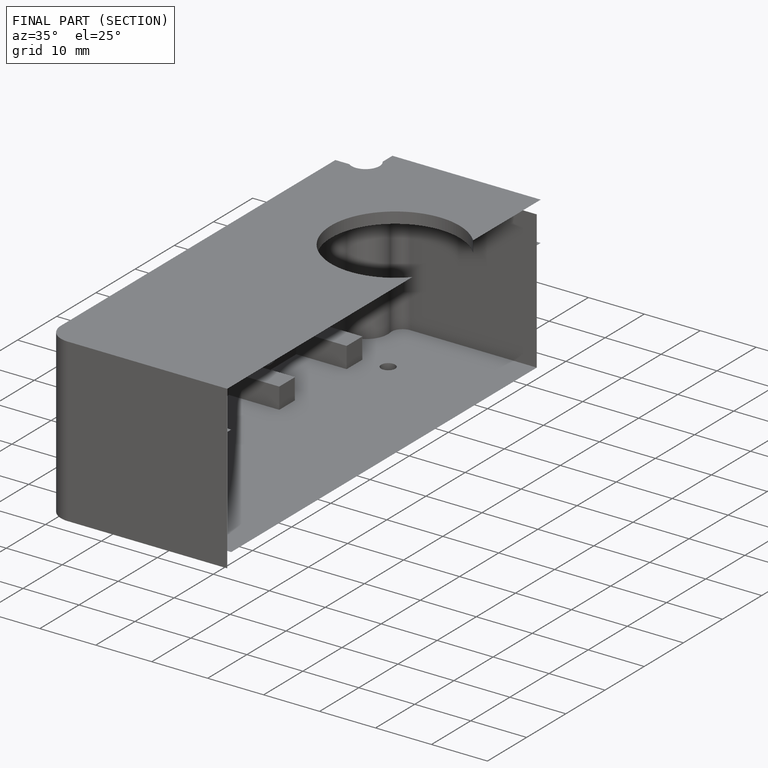
[diagram: finished part — half-section view (interior)]
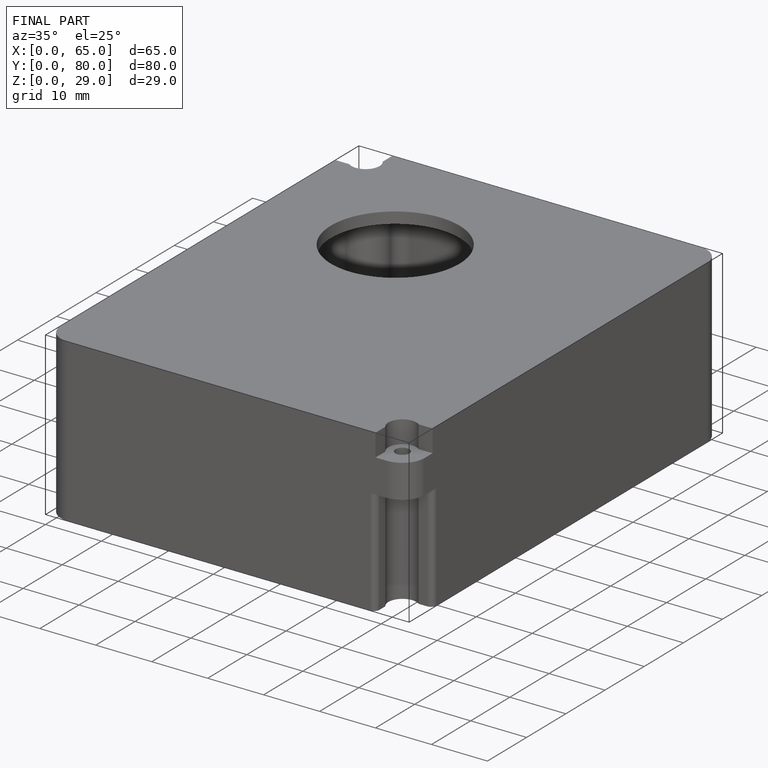
[diagram: finished part — iso view with bounding-box wireframe]
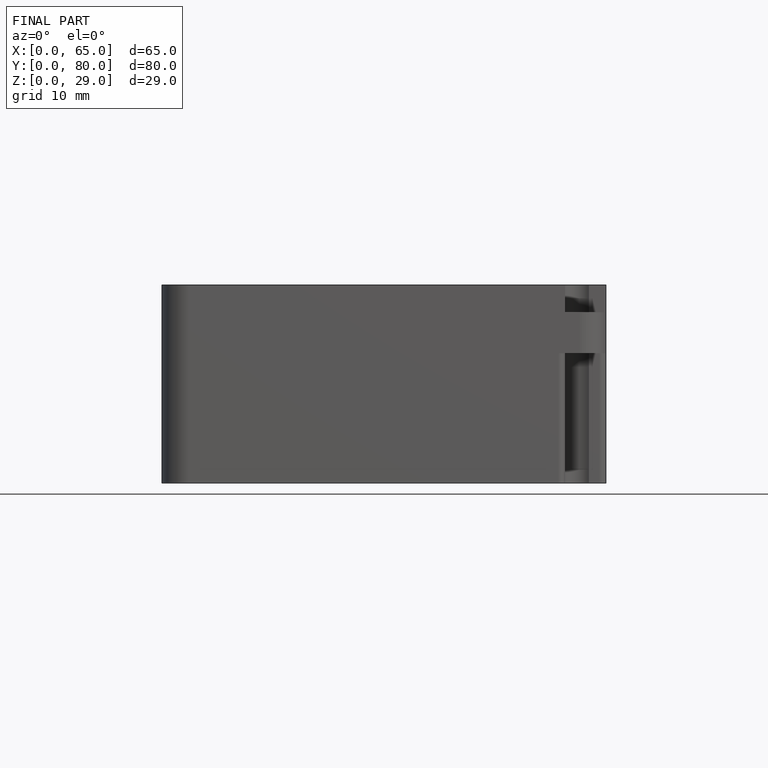
[diagram: finished part — front view with bounding-box wireframe]
